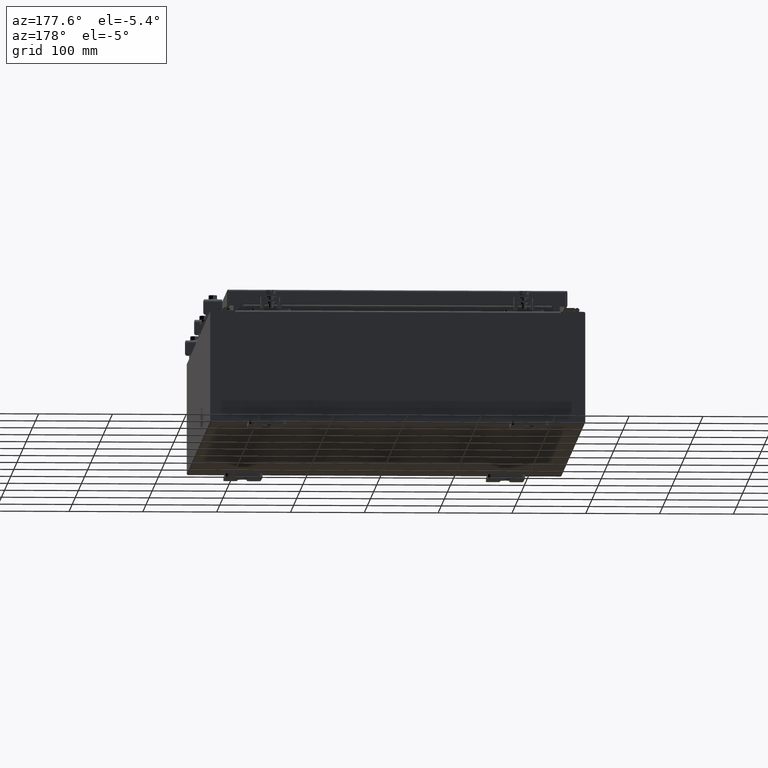
[diagram: clean part render]
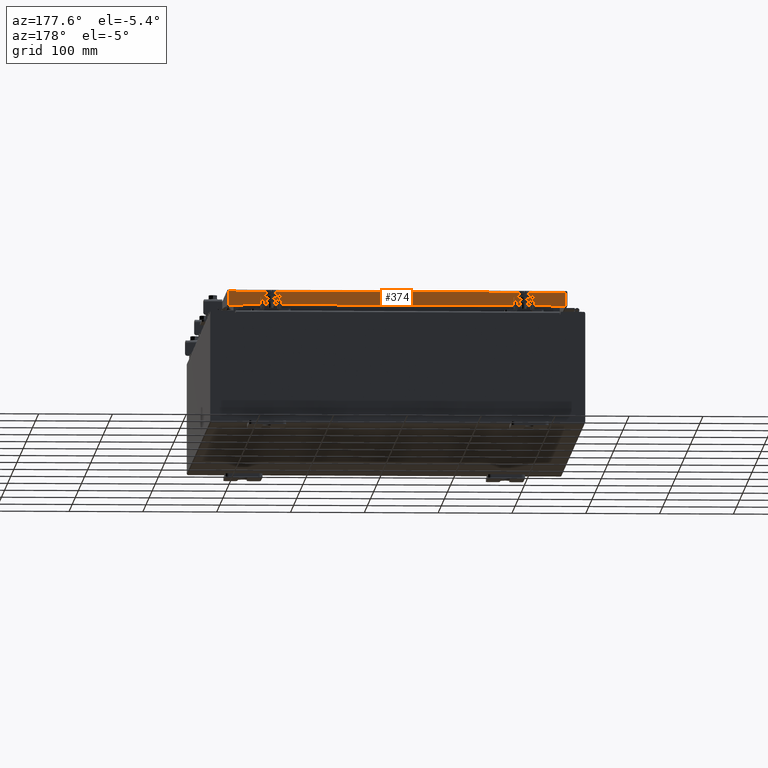
[diagram: same view with one face highlighted and labeled with its STEP entity id]
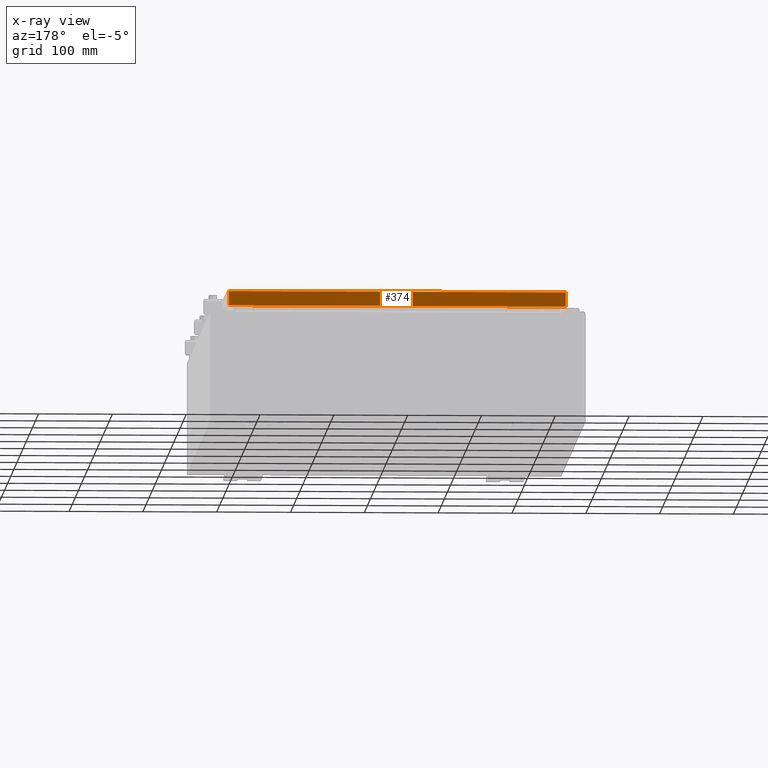
[diagram: x-ray of the same camera — body ghosted, the highlighted face saturated]
A machine part, auxiliary view. The second image highlights one B-rep face of the part: STEP entity #374.
The next image is the same camera in x-ray: the body ghosted, the highlighted face saturated — about 0% of this face is hidden behind the body in this view.
In plain terms, the highlighted planar face has unit normal (0, -1, -0).
Its self-contained STEP definition (entity closure, byte-faithful):
#374 = ADVANCED_FACE ( 'NONE', ( #34737 ), #4033, .F. ) ;
#1421 = ORIENTED_EDGE ( 'NONE', *, *, #24825, .F. ) ;
#1501 = CARTESIAN_POINT ( 'NONE',  ( -9.077999999999997600, 14.09400000000000100, -0.8500000000000019800 ) ) ;
#1638 = CARTESIAN_POINT ( 'NONE',  ( -8.239157864376267100, 14.09399999999999900, -0.8500000000000029800 ) ) ;
#2145 = DIRECTION ( 'NONE',  ( 0.0000000000000000000, 2.818880942772351900E-015, -1.000000000000000000 ) ) ;
#4033 = PLANE ( 'NONE',  #22107 ) ;
#4369 = VERTEX_POINT ( 'NONE', #22492 ) ;
#4876 = EDGE_CURVE ( 'NONE', #4369, #25819, #9110, .T. ) ;
#8242 = ORIENTED_EDGE ( 'NONE', *, *, #20191, .F. ) ;
#8378 = DIRECTION ( 'NONE',  ( -1.000000000000000000, -3.605222026166234800E-031, -9.826997386333231700E-046 ) ) ;
#8468 = LINE ( 'NONE', #1638, #30633 ) ;
#9096 = CARTESIAN_POINT ( 'NONE',  ( 8.989157864376268800, 14.09399999999999900, -0.08770000000000007000 ) ) ;
#9110 = LINE ( 'NONE', #1501, #31285 ) ;
#9437 = LINE ( 'NONE', #14192, #24820 ) ;
#9957 = VECTOR ( 'NONE', #31706, 39.37007874015748100 ) ;
#10320 = DIRECTION ( 'NONE',  ( 1.000000000000000000, -0.0000000000000000000, -0.0000000000000000000 ) ) ;
#11103 = VERTEX_POINT ( 'NONE', #28155 ) ;
#11449 = CARTESIAN_POINT ( 'NONE',  ( -9.077999999999997600, 14.09400000000000100, -0.8500000000000019800 ) ) ;
#11608 = ORIENTED_EDGE ( 'NONE', *, *, #4876, .F. ) ;
#14192 = CARTESIAN_POINT ( 'NONE',  ( -9.077999999999997600, 14.09399999999999900, -0.08770000000000007000 ) ) ;
#15447 = VERTEX_POINT ( 'NONE', #9096 ) ;
#15767 = DIRECTION ( 'NONE',  ( 1.000000000000000000, -4.379057701015054300E-047, 1.278955053213606700E-016 ) ) ;
#15924 = ORIENTED_EDGE ( 'NONE', *, *, #29428, .F. ) ;
#16144 = DIRECTION ( 'NONE',  ( -0.0000000000000000000, 2.818880942772351900E-015, -1.000000000000000000 ) ) ;
#18305 = DIRECTION ( 'NONE',  ( 3.605222026166233900E-031, -1.000000000000000000, -2.818880942772351900E-015 ) ) ;
#20191 = EDGE_CURVE ( 'NONE', #28486, #4369, #35238, .T. ) ;
#20602 = CARTESIAN_POINT ( 'NONE',  ( 8.239157864376268800, 14.09399999999999900, -0.8500000000000029800 ) ) ;
#20707 = VECTOR ( 'NONE', #16144, 39.37007874015748100 ) ;
#20931 = EDGE_LOOP ( 'NONE', ( #33276, #37163, #1421, #15924, #11608, #8242 ) ) ;
#21314 = LINE ( 'NONE', #22318, #29951 ) ;
#22107 = AXIS2_PLACEMENT_3D ( 'NONE', #29344, #18305, #35174 ) ;
#22318 = CARTESIAN_POINT ( 'NONE',  ( 8.989157864376268800, 14.09399999999999900, 3.999012166344510300E-014 ) ) ;
#22492 = CARTESIAN_POINT ( 'NONE',  ( -8.989157864376267100, 14.09400000000000100, -0.8500000000000019800 ) ) ;
#22876 = CARTESIAN_POINT ( 'NONE',  ( -8.989157864376267100, 14.09399999999999900, -0.08770000000000007000 ) ) ;
#24820 = VECTOR ( 'NONE', #8378, 39.37007874015748100 ) ;
#24825 = EDGE_CURVE ( 'NONE', #27266, #11103, #33077, .T. ) ;
#25819 = VERTEX_POINT ( 'NONE', #36573 ) ;
#27266 = VERTEX_POINT ( 'NONE', #20602 ) ;
#28155 = CARTESIAN_POINT ( 'NONE',  ( 8.989157864376268800, 14.09400000000000100, -0.8499999999999996400 ) ) ;
#28478 = EDGE_CURVE ( 'NONE', #15447, #28486, #9437, .T. ) ;
#28486 = VERTEX_POINT ( 'NONE', #22876 ) ;
#29344 = CARTESIAN_POINT ( 'NONE',  ( -5.081199923678690200E-030, 14.09399999999999900, 3.999012166344510300E-014 ) ) ;
#29428 = EDGE_CURVE ( 'NONE', #25819, #27266, #8468, .T. ) ;
#29951 = VECTOR ( 'NONE', #2145, 39.37007874015748100 ) ;
#30633 = VECTOR ( 'NONE', #10320, 39.37007874015748100 ) ;
#31285 = VECTOR ( 'NONE', #15767, 39.37007874015748100 ) ;
#31706 = DIRECTION ( 'NONE',  ( 1.000000000000000000, -4.379057701015054300E-047, 1.278955053213606700E-016 ) ) ;
#32612 = EDGE_CURVE ( 'NONE', #15447, #11103, #21314, .T. ) ;
#33077 = LINE ( 'NONE', #11449, #9957 ) ;
#33276 = ORIENTED_EDGE ( 'NONE', *, *, #28478, .F. ) ;
#33488 = CARTESIAN_POINT ( 'NONE',  ( -8.989157864376267100, 14.09399999999999900, -0.07469999999999978000 ) ) ;
#34737 = FACE_OUTER_BOUND ( 'NONE', #20931, .T. ) ;
#35174 = DIRECTION ( 'NONE',  ( 0.0000000000000000000, 2.818880942772351900E-015, -1.000000000000000000 ) ) ;
#35238 = LINE ( 'NONE', #33488, #20707 ) ;
#36573 = CARTESIAN_POINT ( 'NONE',  ( -8.239157864376265300, 14.09399999999999900, -0.8500000000000029800 ) ) ;
#37163 = ORIENTED_EDGE ( 'NONE', *, *, #32612, .T. ) ;